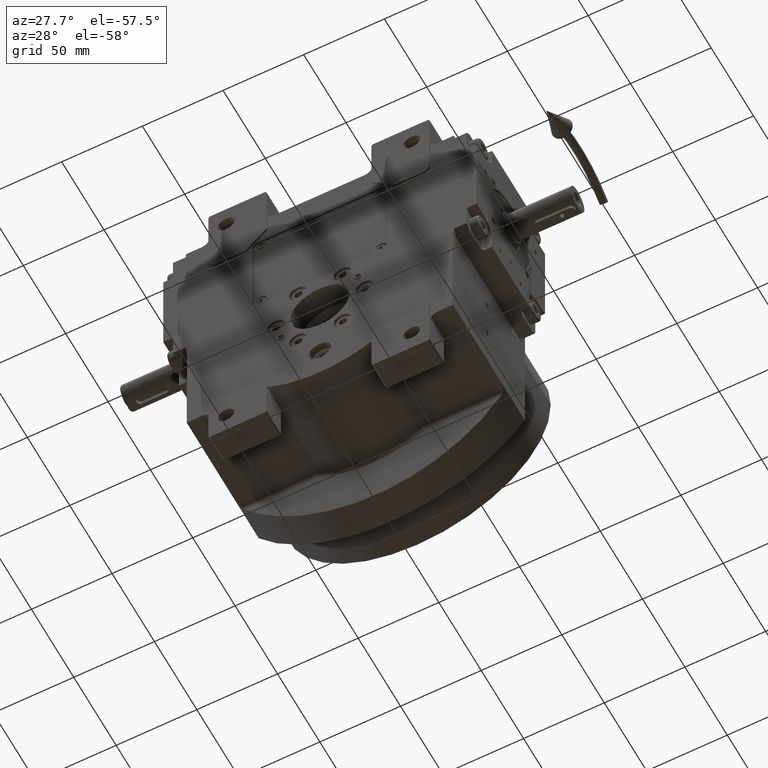
[diagram: clean part render]
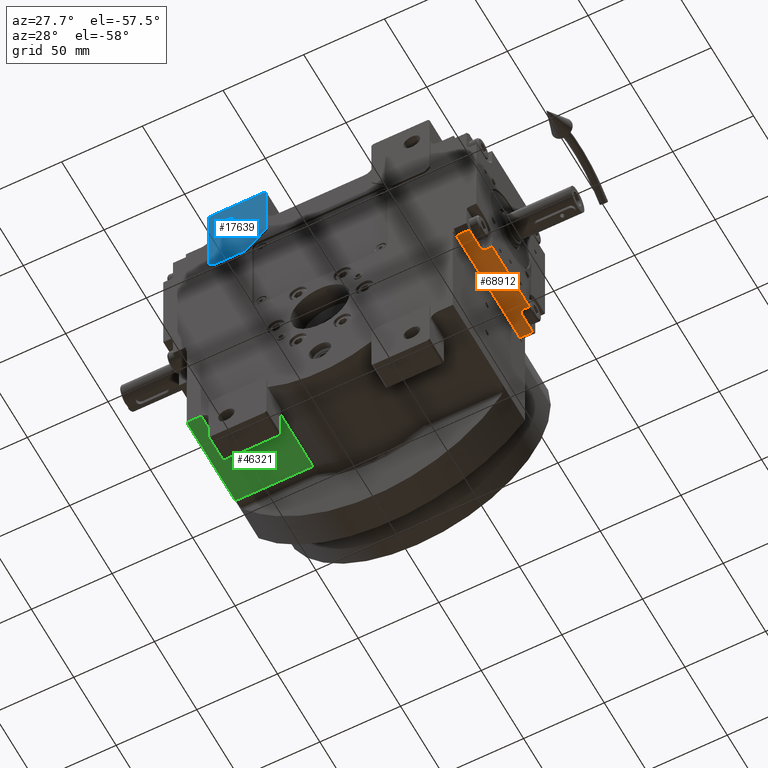
[diagram: same view with three faces highlighted in distinct colors, each labeled with its STEP entity id]
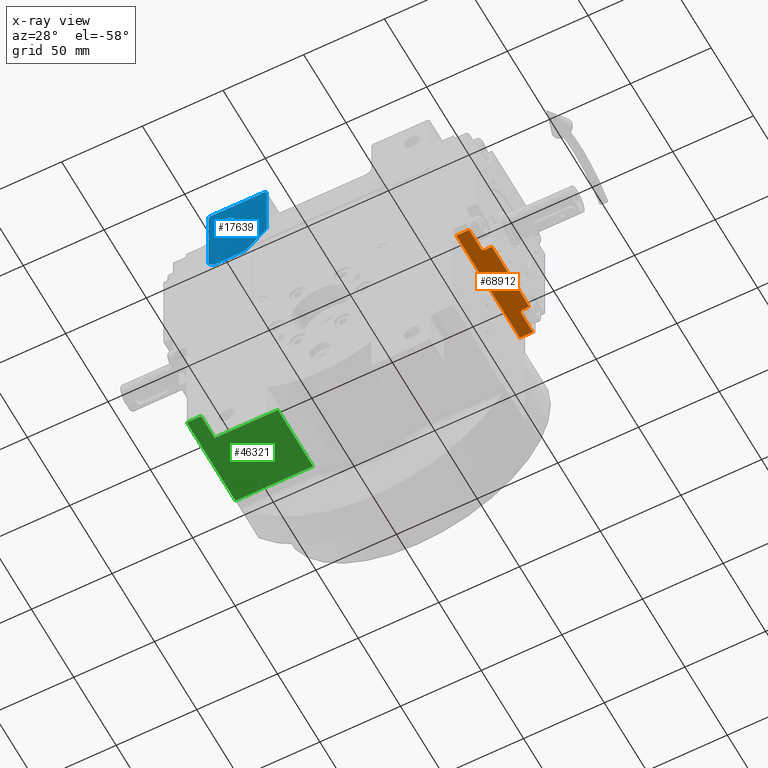
[diagram: x-ray of the same camera — body ghosted, the three highlighted faces saturated]
A machine part, auxiliary view with three faces highlighted in distinct colors.
The next image is the same camera in x-ray (body ghosted, the three faces saturated) — at least one of them is partly hidden behind the body in this view.
Their STEP definitions:

[orange] entity #68912 — the highlighted planar face has unit normal (0, 0, -1).
#418 = VERTEX_POINT ( 'NONE', #54003 ) ;
#906 = DIRECTION ( 'NONE',  ( 1.000000000000000000, -2.076117056049039260E-14, 7.549516567451102340E-15 ) ) ;
#1263 = CARTESIAN_POINT ( 'NONE',  ( -37.49999999999928946, -7.999999999999521272, 48.99999999999953104 ) ) ;
#1326 = LINE ( 'NONE', #45276, #29904 ) ;
#1902 = ORIENTED_EDGE ( 'NONE', *, *, #60142, .F. ) ;
#2170 = ORIENTED_EDGE ( 'NONE', *, *, #15918, .T. ) ;
#2827 = VERTEX_POINT ( 'NONE', #63590 ) ;
#4689 = ORIENTED_EDGE ( 'NONE', *, *, #48119, .T. ) ;
#5431 = CARTESIAN_POINT ( 'NONE',  ( 37.50000000000070344, -9.436895709313830594E-13, 49.00000000000000000 ) ) ;
#7689 = AXIS2_PLACEMENT_3D ( 'NONE', #30352, #56634, #40434 ) ;
#7895 = ORIENTED_EDGE ( 'NONE', *, *, #22889, .T. ) ;
#8102 = DIRECTION ( 'NONE',  ( -7.549516567451141783E-15, -1.887379141862539716E-15, 1.000000000000000000 ) ) ;
#11829 = VERTEX_POINT ( 'NONE', #21332 ) ;
#12835 = VECTOR ( 'NONE', #906, 1000.000000000000000 ) ;
#13584 = CARTESIAN_POINT ( 'NONE',  ( -21.99999999999928946, -13.99999999999952749, 48.99999999999976552 ) ) ;
#14855 = EDGE_LOOP ( 'NONE', ( #1902, #51783, #41850, #7895, #2170, #48615, #16585, #55281, #4689, #57142 ) ) ;
#15918 = EDGE_CURVE ( 'NONE', #2827, #45848, #47967, .T. ) ;
#15970 = CARTESIAN_POINT ( 'NONE',  ( -37.49999999999928946, -7.999999999999521272, 48.99999999999953104 ) ) ;
#15986 = DIRECTION ( 'NONE',  ( 1.000000000000000000, -2.076117056049039260E-14, 7.549516567451102340E-15 ) ) ;
#16585 = ORIENTED_EDGE ( 'NONE', *, *, #34235, .T. ) ;
#16860 = VERTEX_POINT ( 'NONE', #19713 ) ;
#17047 = LINE ( 'NONE', #49830, #29251 ) ;
#17826 = LINE ( 'NONE', #50255, #12835 ) ;
#18473 = EDGE_CURVE ( 'NONE', #42339, #418, #17047, .T. ) ;
#19453 = AXIS2_PLACEMENT_3D ( 'NONE', #70684, #43343, #65292 ) ;
#19673 = CARTESIAN_POINT ( 'NONE',  ( 22.00000000000070699, -14.00000000000047073, 49.00000000000000000 ) ) ;
#19713 = CARTESIAN_POINT ( 'NONE',  ( -37.49999999999928946, 4.718447854656915297E-13, 48.99999999999953104 ) ) ;
#21332 = CARTESIAN_POINT ( 'NONE',  ( 22.00000000000058975, -10.00000000000048139, 49.00000000000000000 ) ) ;
#22889 = EDGE_CURVE ( 'NONE', #50803, #2827, #33613, .T. ) ;
#22940 = DIRECTION ( 'NONE',  ( -2.076117056049039260E-14, 1.000000000000000000, -1.887379141862854077E-15 ) ) ;
#25037 = PLANE ( 'NONE',  #67253 ) ;
#25730 = CARTESIAN_POINT ( 'NONE',  ( -40.49999999999929656, 4.718447854656915297E-13, 48.99999999999953104 ) ) ;
#28367 = LINE ( 'NONE', #13584, #64719 ) ;
#29251 = VECTOR ( 'NONE', #15986, 1000.000000000000000 ) ;
#29573 = CARTESIAN_POINT ( 'NONE',  ( -21.99999999999928946, -13.99999999999952749, 48.99999999999976552 ) ) ;
#29904 = VECTOR ( 'NONE', #22940, 1000.000000000000000 ) ;
#30352 = CARTESIAN_POINT ( 'NONE',  ( -23.99999999999941025, -9.999999999999536371, 48.99999999999953104 ) ) ;
#33613 = LINE ( 'NONE', #15970, #45305 ) ;
#33873 = EDGE_CURVE ( 'NONE', #45935, #45848, #28367, .T. ) ;
#34235 = EDGE_CURVE ( 'NONE', #45935, #53532, #17826, .T. ) ;
#34436 = CIRCLE ( 'NONE', #19453, 2.000000000000001776 ) ;
#35056 = EDGE_CURVE ( 'NONE', #16860, #66248, #44747, .T. ) ;
#39346 = DIRECTION ( 'NONE',  ( 1.000000000000000000, -2.076117056049039260E-14, 7.549516567451102340E-15 ) ) ;
#40434 = DIRECTION ( 'NONE',  ( -2.081668171172168513E-14, 1.000000000000000000, -3.469446951953614189E-15 ) ) ;
#41599 = DIRECTION ( 'NONE',  ( 1.000000000000000000, -2.076117056049039260E-14, 7.549516567451102340E-15 ) ) ;
#41850 = ORIENTED_EDGE ( 'NONE', *, *, #63219, .T. ) ;
#42172 = LINE ( 'NONE', #42872, #63354 ) ;
#42339 = VERTEX_POINT ( 'NONE', #53194 ) ;
#42872 = CARTESIAN_POINT ( 'NONE',  ( -37.49999999999928946, 4.718447854656915297E-13, 48.99999999999953104 ) ) ;
#43343 = DIRECTION ( 'NONE',  ( -7.549516567451105496E-15, 1.887379141862852893E-15, -1.000000000000000000 ) ) ;
#43694 = DIRECTION ( 'NONE',  ( 1.000000000000000000, -2.076117056049039260E-14, 7.549516567451102340E-15 ) ) ;
#44747 = LINE ( 'NONE', #46162, #52157 ) ;
#45276 = CARTESIAN_POINT ( 'NONE',  ( 22.00000000000070699, -14.00000000000047073, 49.00000000000000000 ) ) ;
#45305 = VECTOR ( 'NONE', #43694, 1000.000000000000000 ) ;
#45848 = VERTEX_POINT ( 'NONE', #50806 ) ;
#45935 = VERTEX_POINT ( 'NONE', #29573 ) ;
#45986 = LINE ( 'NONE', #46357, #51703 ) ;
#46162 = CARTESIAN_POINT ( 'NONE',  ( -37.49999999999928946, 4.718447854656915297E-13, 48.99999999999953104 ) ) ;
#46357 = CARTESIAN_POINT ( 'NONE',  ( 37.50000000000070344, -9.436895709313830594E-13, 49.00000000000000000 ) ) ;
#47967 = CIRCLE ( 'NONE', #7689, 2.000000000000000000 ) ;
#48119 = EDGE_CURVE ( 'NONE', #11829, #42339, #34436, .T. ) ;
#48615 = ORIENTED_EDGE ( 'NONE', *, *, #33873, .F. ) ;
#49108 = EDGE_CURVE ( 'NONE', #53532, #11829, #1326, .T. ) ;
#49830 = CARTESIAN_POINT ( 'NONE',  ( 24.00000000000058975, -8.000000000000923706, 49.00000000000000000 ) ) ;
#50255 = CARTESIAN_POINT ( 'NONE',  ( -21.99999999999928946, -13.99999999999952749, 48.99999999999976552 ) ) ;
#50803 = VERTEX_POINT ( 'NONE', #1263 ) ;
#50806 = CARTESIAN_POINT ( 'NONE',  ( -21.99999999999941025, -9.999999999999536371, 48.99999999999953104 ) ) ;
#51703 = VECTOR ( 'NONE', #68305, 1000.000000000000000 ) ;
#51783 = ORIENTED_EDGE ( 'NONE', *, *, #35056, .F. ) ;
#52157 = VECTOR ( 'NONE', #39346, 1000.000000000000000 ) ;
#53194 = CARTESIAN_POINT ( 'NONE',  ( 24.00000000000058975, -8.000000000000923706, 49.00000000000000000 ) ) ;
#53532 = VERTEX_POINT ( 'NONE', #19673 ) ;
#54003 = CARTESIAN_POINT ( 'NONE',  ( 37.50000000000070344, -8.000000000000950351, 49.00000000000000000 ) ) ;
#55281 = ORIENTED_EDGE ( 'NONE', *, *, #49108, .T. ) ;
#56634 = DIRECTION ( 'NONE',  ( -7.549516567451105496E-15, 1.887379141862852893E-15, -1.000000000000000000 ) ) ;
#57142 = ORIENTED_EDGE ( 'NONE', *, *, #18473, .T. ) ;
#58168 = FACE_OUTER_BOUND ( 'NONE', #14855, .T. ) ;
#58242 = DIRECTION ( 'NONE',  ( -2.076117056049039260E-14, 1.000000000000000000, -1.887379141862854077E-15 ) ) ;
#60142 = EDGE_CURVE ( 'NONE', #66248, #418, #45986, .T. ) ;
#63219 = EDGE_CURVE ( 'NONE', #16860, #50803, #42172, .T. ) ;
#63354 = VECTOR ( 'NONE', #64824, 1000.000000000000000 ) ;
#63590 = CARTESIAN_POINT ( 'NONE',  ( -23.99999999999941025, -7.999999999999535483, 48.99999999999953104 ) ) ;
#64719 = VECTOR ( 'NONE', #58242, 1000.000000000000000 ) ;
#64824 = DIRECTION ( 'NONE',  ( 2.076117056049039260E-14, -1.000000000000000000, 1.887379141862854077E-15 ) ) ;
#65292 = DIRECTION ( 'NONE',  ( -1.000000000000000000, 2.255140518769847329E-14, -6.938893903907222067E-15 ) ) ;
#66248 = VERTEX_POINT ( 'NONE', #5431 ) ;
#67253 = AXIS2_PLACEMENT_3D ( 'NONE', #25730, #8102, #41599 ) ;
#68305 = DIRECTION ( 'NONE',  ( 2.076117056049039260E-14, -1.000000000000000000, 1.887379141862854077E-15 ) ) ;
#68912 = ADVANCED_FACE ( 'NONE', ( #58168 ), #25037, .T. ) ;
#70684 = CARTESIAN_POINT ( 'NONE',  ( 24.00000000000058975, -10.00000000000092548, 49.00000000000000000 ) ) ;

[blue] entity #17639 — the highlighted planar face has unit normal (0, -1, 0).
#320 = EDGE_LOOP ( 'NONE', ( #22769, #9641, #30876, #1561, #18583, #32978, #63166, #6053 ) ) ;
#903 = DIRECTION ( 'NONE',  ( -0.7071067811865500152, 0.000000000000000000, 0.7071067811865450192 ) ) ;
#1561 = ORIENTED_EDGE ( 'NONE', *, *, #8623, .T. ) ;
#2166 = DIRECTION ( 'NONE',  ( -0.7071067811865474617, 0.000000000000000000, -0.7071067811865474617 ) ) ;
#4993 = LINE ( 'NONE', #48958, #20212 ) ;
#5305 = CARTESIAN_POINT ( 'NONE',  ( -32.49999999999934630, -41.50000000000000000, 102.0000000000000000 ) ) ;
#6053 = ORIENTED_EDGE ( 'NONE', *, *, #39871, .T. ) ;
#7738 = CARTESIAN_POINT ( 'NONE',  ( -33.49999999999934630, -41.50000000000000000, 140.0000000000000000 ) ) ;
#7744 = DIRECTION ( 'NONE',  ( 1.000000000000000000, 0.000000000000000000, 0.000000000000000000 ) ) ;
#8294 = DIRECTION ( 'NONE',  ( -1.000000000000000000, 0.000000000000000000, 0.000000000000000000 ) ) ;
#8623 = EDGE_CURVE ( 'NONE', #36700, #60441, #65542, .T. ) ;
#8677 = VECTOR ( 'NONE', #903, 1000.000000000000000 ) ;
#9641 = ORIENTED_EDGE ( 'NONE', *, *, #10758, .T. ) ;
#10758 = EDGE_CURVE ( 'NONE', #53536, #32195, #34282, .T. ) ;
#12993 = LINE ( 'NONE', #68452, #70054 ) ;
#13467 = VERTEX_POINT ( 'NONE', #46875 ) ;
#17639 = ADVANCED_FACE ( 'NONE', ( #40362, #57288 ), #68065, .T. ) ;
#18309 = ORIENTED_EDGE ( 'NONE', *, *, #57783, .T. ) ;
#18402 = LINE ( 'NONE', #46512, #46011 ) ;
#18583 = ORIENTED_EDGE ( 'NONE', *, *, #55358, .T. ) ;
#19633 = CARTESIAN_POINT ( 'NONE',  ( -57.50000000000000000, -41.50000000000000000, 125.0000000000000000 ) ) ;
#20133 = EDGE_CURVE ( 'NONE', #13467, #55066, #39797, .T. ) ;
#20212 = VECTOR ( 'NONE', #43536, 1000.000000000000000 ) ;
#21089 = VERTEX_POINT ( 'NONE', #5305 ) ;
#21454 = CIRCLE ( 'NONE', #69763, 5.249999999999997335 ) ;
#21562 = CARTESIAN_POINT ( 'NONE',  ( -32.49999999999934630, -41.50000000000000000, 139.0000000000000000 ) ) ;
#21955 = DIRECTION ( 'NONE',  ( 0.7071067811865474617, 0.000000000000000000, -0.7071067811865474617 ) ) ;
#22112 = VECTOR ( 'NONE', #44478, 1000.000000000000000 ) ;
#22548 = ORIENTED_EDGE ( 'NONE', *, *, #20133, .T. ) ;
#22769 = ORIENTED_EDGE ( 'NONE', *, *, #64426, .T. ) ;
#26510 = CARTESIAN_POINT ( 'NONE',  ( -52.25000000000000000, -41.50000000000000000, 125.0000000000000000 ) ) ;
#30803 = CARTESIAN_POINT ( 'NONE',  ( -57.50000000000000000, -41.50000000000000000, 125.0000000000000000 ) ) ;
#30876 = ORIENTED_EDGE ( 'NONE', *, *, #45885, .T. ) ;
#31530 = DIRECTION ( 'NONE',  ( 0.000000000000000000, 1.000000000000000000, 0.000000000000000000 ) ) ;
#32195 = VERTEX_POINT ( 'NONE', #69436 ) ;
#32978 = ORIENTED_EDGE ( 'NONE', *, *, #47019, .T. ) ;
#34282 = LINE ( 'NONE', #56564, #38333 ) ;
#34982 = DIRECTION ( 'NONE',  ( 0.000000000000000000, 0.000000000000000000, -1.000000000000000000 ) ) ;
#36036 = CARTESIAN_POINT ( 'NONE',  ( 0.000000000000000000, -41.50000000000000000, 0.000000000000000000 ) ) ;
#36700 = VERTEX_POINT ( 'NONE', #37859 ) ;
#36730 = CARTESIAN_POINT ( 'NONE',  ( -65.50000000000000000, -41.50000000000000000, 89.00000000000000000 ) ) ;
#37859 = CARTESIAN_POINT ( 'NONE',  ( -68.50000000000000000, -41.50000000000000000, 92.00000000000000000 ) ) ;
#38333 = VECTOR ( 'NONE', #2166, 1000.000000000000114 ) ;
#39797 = CIRCLE ( 'NONE', #59347, 5.249999999999997335 ) ;
#39871 = EDGE_CURVE ( 'NONE', #40713, #40078, #44138, .T. ) ;
#40078 = VERTEX_POINT ( 'NONE', #7738 ) ;
#40362 = FACE_BOUND ( 'NONE', #62588, .T. ) ;
#40713 = VERTEX_POINT ( 'NONE', #21562 ) ;
#43536 = DIRECTION ( 'NONE',  ( 0.000000000000000000, 0.000000000000000000, 1.000000000000000000 ) ) ;
#44059 = CARTESIAN_POINT ( 'NONE',  ( -45.49999999999939604, -41.50000000000000000, 89.00000000000000000 ) ) ;
#44138 = LINE ( 'NONE', #50250, #8677 ) ;
#44478 = DIRECTION ( 'NONE',  ( -1.000000000000000000, 0.000000000000000000, 0.000000000000000000 ) ) ;
#45885 = EDGE_CURVE ( 'NONE', #32195, #36700, #12993, .T. ) ;
#46011 = VECTOR ( 'NONE', #68088, 1000.000000000000000 ) ;
#46344 = CARTESIAN_POINT ( 'NONE',  ( -67.50000000000000000, -41.50000000000000000, 140.0000000000000000 ) ) ;
#46512 = CARTESIAN_POINT ( 'NONE',  ( -45.49999999999939604, -41.50000000000000000, 89.00000000000000000 ) ) ;
#46875 = CARTESIAN_POINT ( 'NONE',  ( -62.75000000000000000, -41.50000000000000000, 125.0000000000000000 ) ) ;
#47019 = EDGE_CURVE ( 'NONE', #58187, #21089, #18402, .T. ) ;
#48958 = CARTESIAN_POINT ( 'NONE',  ( -32.49999999999934630, -41.50000000000000000, 102.0000000000000000 ) ) ;
#49157 = DIRECTION ( 'NONE',  ( -1.000000000000000000, 0.000000000000000000, 5.286776307738843186E-15 ) ) ;
#49171 = VECTOR ( 'NONE', #21955, 1000.000000000000114 ) ;
#49701 = CARTESIAN_POINT ( 'NONE',  ( -68.50000000000000000, -41.50000000000000000, 92.00000000000000000 ) ) ;
#50250 = CARTESIAN_POINT ( 'NONE',  ( -32.49999999999934630, -41.50000000000000000, 139.0000000000000000 ) ) ;
#50572 = LINE ( 'NONE', #61376, #22112 ) ;
#52030 = CARTESIAN_POINT ( 'NONE',  ( -65.50000000000000000, -41.50000000000000000, 89.00000000000000000 ) ) ;
#52753 = DIRECTION ( 'NONE',  ( 0.000000000000000000, 1.000000000000000000, 0.000000000000000000 ) ) ;
#53536 = VERTEX_POINT ( 'NONE', #46344 ) ;
#55066 = VERTEX_POINT ( 'NONE', #26510 ) ;
#55358 = EDGE_CURVE ( 'NONE', #60441, #58187, #57445, .T. ) ;
#56564 = CARTESIAN_POINT ( 'NONE',  ( -67.50000000000000000, -41.50000000000000000, 140.0000000000000000 ) ) ;
#57069 = EDGE_CURVE ( 'NONE', #21089, #40713, #4993, .T. ) ;
#57288 = FACE_OUTER_BOUND ( 'NONE', #320, .T. ) ;
#57445 = LINE ( 'NONE', #52030, #63752 ) ;
#57783 = EDGE_CURVE ( 'NONE', #55066, #13467, #21454, .T. ) ;
#58187 = VERTEX_POINT ( 'NONE', #44059 ) ;
#59347 = AXIS2_PLACEMENT_3D ( 'NONE', #19633, #31530, #49157 ) ;
#60441 = VERTEX_POINT ( 'NONE', #36730 ) ;
#61376 = CARTESIAN_POINT ( 'NONE',  ( -33.49999999999934630, -41.50000000000000000, 140.0000000000000000 ) ) ;
#62588 = EDGE_LOOP ( 'NONE', ( #18309, #22548 ) ) ;
#63166 = ORIENTED_EDGE ( 'NONE', *, *, #57069, .T. ) ;
#63752 = VECTOR ( 'NONE', #7744, 1000.000000000000000 ) ;
#64426 = EDGE_CURVE ( 'NONE', #40078, #53536, #50572, .T. ) ;
#65542 = LINE ( 'NONE', #49701, #49171 ) ;
#67124 = AXIS2_PLACEMENT_3D ( 'NONE', #36036, #67362, #8294 ) ;
#67362 = DIRECTION ( 'NONE',  ( 0.000000000000000000, -1.000000000000000000, 0.000000000000000000 ) ) ;
#67874 = DIRECTION ( 'NONE',  ( 1.000000000000000000, 0.000000000000000000, 5.286776307738843186E-15 ) ) ;
#68065 = PLANE ( 'NONE',  #67124 ) ;
#68088 = DIRECTION ( 'NONE',  ( 0.7071067811865480168, 0.000000000000000000, 0.7071067811865470176 ) ) ;
#68452 = CARTESIAN_POINT ( 'NONE',  ( -68.50000000000000000, -41.50000000000000000, 139.0000000000000000 ) ) ;
#69436 = CARTESIAN_POINT ( 'NONE',  ( -68.50000000000000000, -41.50000000000000000, 139.0000000000000000 ) ) ;
#69763 = AXIS2_PLACEMENT_3D ( 'NONE', #30803, #52753, #67874 ) ;
#70054 = VECTOR ( 'NONE', #34982, 1000.000000000000000 ) ;

[green] entity #46321 — the highlighted planar face has unit normal (0, 0, 1).
#586 = EDGE_CURVE ( 'NONE', #61827, #17626, #12878, .T. ) ;
#2897 = CARTESIAN_POINT ( 'NONE',  ( -82.50000025288930772, 16.91834889469715009, -58.26448317800269905 ) ) ;
#11418 = EDGE_CURVE ( 'NONE', #32840, #59456, #53831, .T. ) ;
#12453 = DIRECTION ( 'NONE',  ( -1.000000000000000000, 0.000000000000000000, 0.000000000000000000 ) ) ;
#12696 = ORIENTED_EDGE ( 'NONE', *, *, #586, .F. ) ;
#12878 = LINE ( 'NONE', #40269, #69043 ) ;
#15301 = PLANE ( 'NONE',  #26426 ) ;
#15746 = CARTESIAN_POINT ( 'NONE',  ( -82.50000000000000000, -40.50000000000000000, -58.26448317800490173 ) ) ;
#17143 = LINE ( 'NONE', #55692, #67205 ) ;
#17626 = VERTEX_POINT ( 'NONE', #2897 ) ;
#19124 = CARTESIAN_POINT ( 'NONE',  ( -34.37448426114839606, 16.91834412991290293, -58.26448317800490173 ) ) ;
#22437 = DIRECTION ( 'NONE',  ( -1.715526660195324723E-16, 1.000000000000000000, 0.000000000000000000 ) ) ;
#26415 = EDGE_LOOP ( 'NONE', ( #48290, #52774, #41081, #66268, #64286, #12696 ) ) ;
#26426 = AXIS2_PLACEMENT_3D ( 'NONE', #37293, #26463, #70385 ) ;
#26463 = DIRECTION ( 'NONE',  ( 0.000000000000000000, 0.000000000000000000, 1.000000000000000000 ) ) ;
#26533 = DIRECTION ( 'NONE',  ( 1.000000000000000000, 0.000000000000000000, 0.000000000000000000 ) ) ;
#28388 = DIRECTION ( 'NONE',  ( -1.000000000000000000, 0.000000000000000000, 0.000000000000000000 ) ) ;
#29964 = CARTESIAN_POINT ( 'NONE',  ( -73.50000000000000000, -40.50000000000000000, -58.26448317800490173 ) ) ;
#32271 = VERTEX_POINT ( 'NONE', #47497 ) ;
#32840 = VERTEX_POINT ( 'NONE', #29964 ) ;
#34276 = VECTOR ( 'NONE', #26533, 1000.000000000000000 ) ;
#36833 = VERTEX_POINT ( 'NONE', #56534 ) ;
#37293 = CARTESIAN_POINT ( 'NONE',  ( -33.07944981404600071, -40.50000000000000000, -58.26448317800490173 ) ) ;
#38973 = EDGE_CURVE ( 'NONE', #36833, #59456, #17143, .T. ) ;
#40269 = CARTESIAN_POINT ( 'NONE',  ( -34.37448426114839606, 16.91834412991290293, -58.26448317800490173 ) ) ;
#41081 = ORIENTED_EDGE ( 'NONE', *, *, #11418, .F. ) ;
#42753 = LINE ( 'NONE', #15746, #34276 ) ;
#44731 = VECTOR ( 'NONE', #48433, 1000.000000000000000 ) ;
#45042 = VECTOR ( 'NONE', #22437, 1000.000000000000000 ) ;
#45127 = EDGE_CURVE ( 'NONE', #32271, #17626, #69672, .T. ) ;
#45835 = CARTESIAN_POINT ( 'NONE',  ( -73.50000000000000000, -24.50000000000000000, -58.26448317800490173 ) ) ;
#46321 = ADVANCED_FACE ( 'NONE', ( #64637 ), #15301, .F. ) ;
#47497 = CARTESIAN_POINT ( 'NONE',  ( -82.50000000000000000, -40.50000000000000000, -58.26448317800490173 ) ) ;
#48290 = ORIENTED_EDGE ( 'NONE', *, *, #51233, .F. ) ;
#48433 = DIRECTION ( 'NONE',  ( 0.000000000000000000, 1.000000000000000000, 0.000000000000000000 ) ) ;
#51233 = EDGE_CURVE ( 'NONE', #36833, #61827, #66726, .T. ) ;
#52774 = ORIENTED_EDGE ( 'NONE', *, *, #38973, .T. ) ;
#53476 = CARTESIAN_POINT ( 'NONE',  ( -82.50000000000000000, -40.50000000000000000, -58.26448317800490173 ) ) ;
#53831 = LINE ( 'NONE', #69675, #69479 ) ;
#55692 = CARTESIAN_POINT ( 'NONE',  ( -34.37448426114834632, -24.50000000000000000, -58.26448317800490173 ) ) ;
#56534 = CARTESIAN_POINT ( 'NONE',  ( -34.37448426114834632, -24.50000000000000000, -58.26448317800490173 ) ) ;
#56640 = CARTESIAN_POINT ( 'NONE',  ( -34.37448426114834632, -24.50000000000000000, -58.26448317800490173 ) ) ;
#58756 = EDGE_CURVE ( 'NONE', #32271, #32840, #42753, .T. ) ;
#59456 = VERTEX_POINT ( 'NONE', #45835 ) ;
#61827 = VERTEX_POINT ( 'NONE', #19124 ) ;
#64286 = ORIENTED_EDGE ( 'NONE', *, *, #45127, .T. ) ;
#64637 = FACE_OUTER_BOUND ( 'NONE', #26415, .T. ) ;
#66268 = ORIENTED_EDGE ( 'NONE', *, *, #58756, .F. ) ;
#66726 = LINE ( 'NONE', #56640, #45042 ) ;
#67205 = VECTOR ( 'NONE', #12453, 1000.000000000000000 ) ;
#69043 = VECTOR ( 'NONE', #28388, 1000.000000000000000 ) ;
#69479 = VECTOR ( 'NONE', #70014, 1000.000000000000000 ) ;
#69672 = LINE ( 'NONE', #53476, #44731 ) ;
#69675 = CARTESIAN_POINT ( 'NONE',  ( -73.50000000000000000, -40.50000000000000000, -58.26448317800490173 ) ) ;
#70014 = DIRECTION ( 'NONE',  ( 0.000000000000000000, 1.000000000000000000, 0.000000000000000000 ) ) ;
#70385 = DIRECTION ( 'NONE',  ( -1.000000000000000000, 0.000000000000000000, 0.000000000000000000 ) ) ;